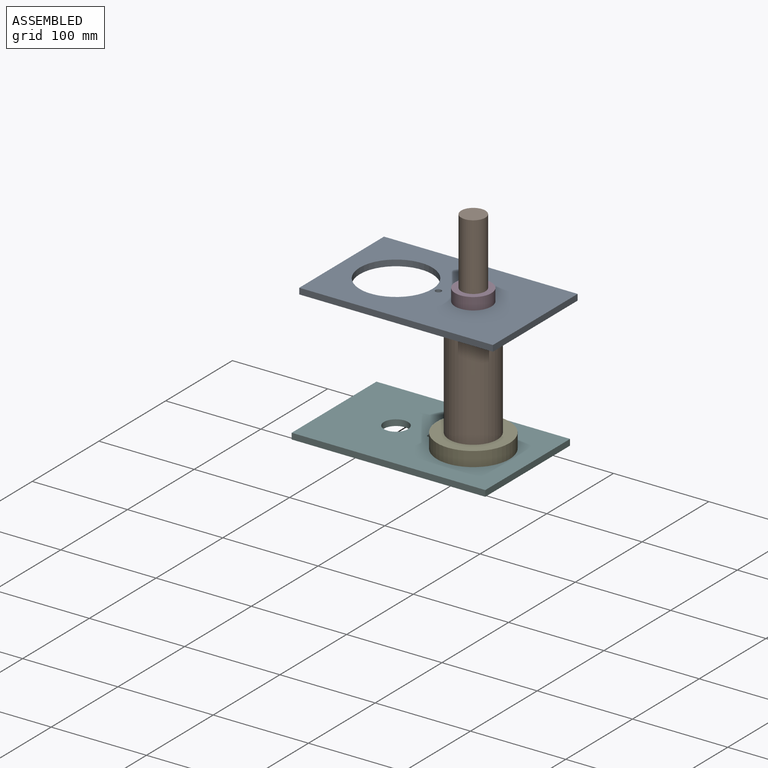
[diagram: assembled view]
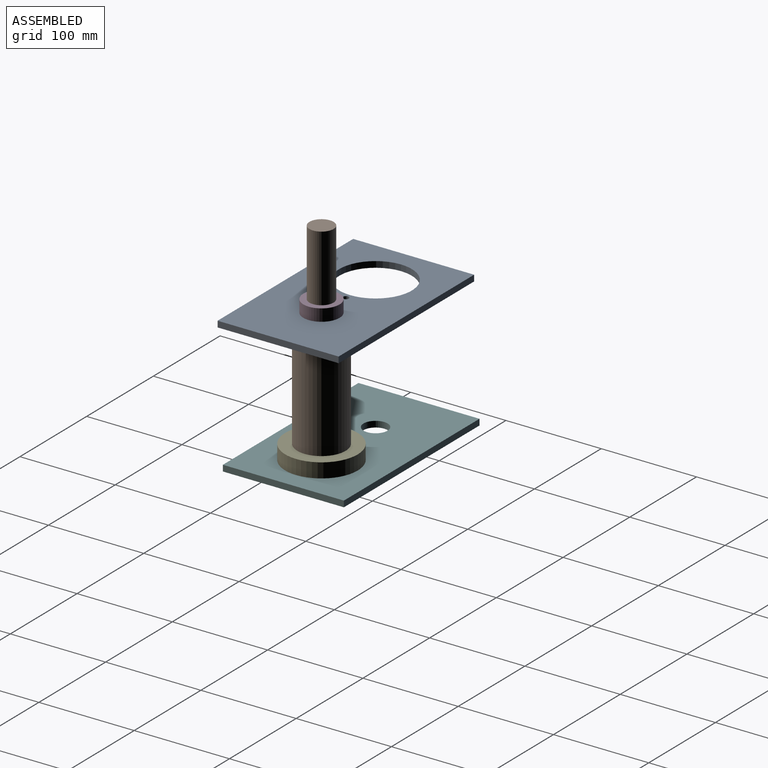
[diagram: assembled view, second angle]
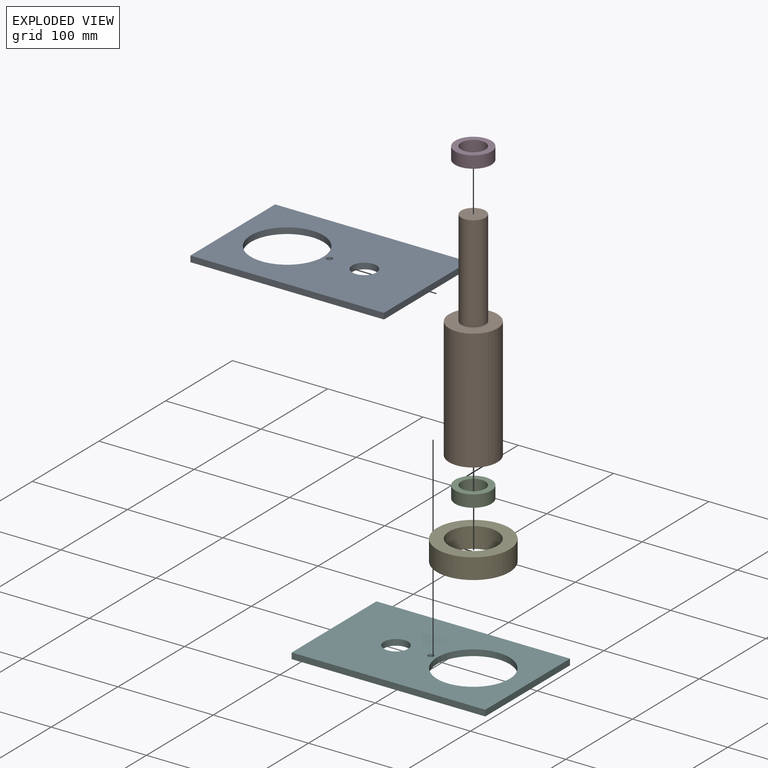
[diagram: exploded view]
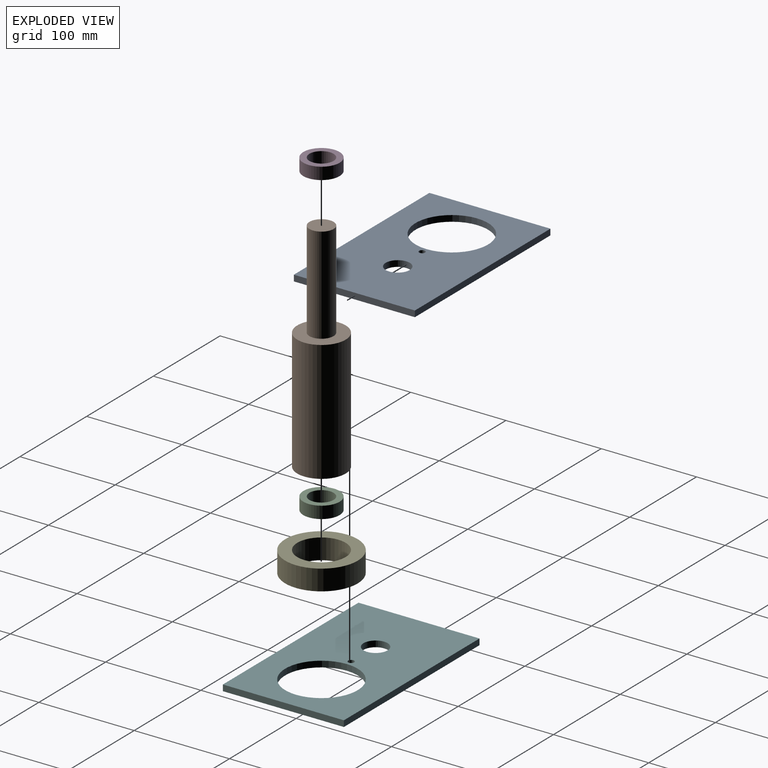
[diagram: exploded view, second angle]
ASSEMBLY  parts=6 mates=5
PART A: 9 faces, bbox 203.2x127x6.4 mm
  f0: plane 127x6.35mm, normal (1,0,0), area 806.5mm2, adj f1,f5,f7,f8
  f1: plane 203.2x6.35mm, normal (0,1,0), area 1290.3mm2, adj f0,f2,f7,f8
  f2: plane 127x6.35mm, normal (-1,0,0), area 806.5mm2, adj f1,f5,f7,f8
  f3: cylinder r=12.7mm len=25.4mm, axis (0,0,-1), area 506.7mm2, adj f7,f8
  f4: cylinder r=3.17mm len=6.35mm, axis (0,0,-1), area 126.7mm2, adj f7,f8
  f5: plane 203.2x6.35mm, normal (0,-1,0), area 1290.3mm2, adj f0,f2,f7,f8
  f6: cylinder r=38.1mm len=76.2mm, axis (0,0,-1), area 1520.1mm2, adj f7,f8
  f7: plane 203.2x127mm, normal (0,0,1), area 20707.7mm2, adj f0,f1,f2,f3,f4,f5,f6
  f8: plane 203.2x127mm, normal (0,0,-1), area 20707.7mm2, adj f0,f1,f2,f3,f4,f5,f6
PART B: 8 faces, bbox 50.8x50.8x228.6 mm
  f0: cone r=15.88mm half-angle=8.2deg, axis (0,0,-1), area 2337.3mm2, adj f1,f7
  f1: plane 50.8x50.8mm, normal (0,0,-1), area 1235.1mm2, adj f0,f2
  f2: cylinder r=25.4mm len=127mm, axis (0,0,1), area 20268.3mm2, adj f1,f3
  f3: plane 50.8x50.8mm, normal (0,0,1), area 1520.1mm2, adj f2,f4
  f4: cylinder r=12.7mm len=101.6mm, axis (0,0,1), area 8107.3mm2, adj f3,f5
  f5: plane 25.4x25.4mm, normal (0,0,1), area 506.7mm2, adj f4
  f6: plane 24.1x24.1mm, normal (0,0,-1), area 456.3mm2, adj f7
  f7: cylinder r=12.05mm len=75.24mm, axis (0,0,1), area 5697.3mm2, adj f0,f6
PART C: 4 faces, bbox 38.1x38.1x12.7 mm
  f0: cylinder r=12.7mm len=25.4mm, axis (0,0,-1), area 1013.4mm2, adj f2,f3
  f1: cylinder r=19.05mm len=38.1mm, axis (0,0,-1), area 1520.1mm2, adj f2,f3
  f2: plane 38.1x38.1mm, normal (0,0,1), area 633.4mm2, adj f0,f1
  f3: plane 38.1x38.1mm, normal (0,0,-1), area 633.4mm2, adj f0,f1
PART D: same geometry as C
PART E: 4 faces, bbox 76.2x76.2x21.6 mm
  f0: cylinder r=25.4mm len=50.8mm, axis (0,0,-1), area 3445.6mm2, adj f2,f3
  f1: cylinder r=38.1mm len=76.2mm, axis (0,0,-1), area 5168.4mm2, adj f2,f3
  f2: plane 76.2x76.2mm, normal (0,0,1), area 2533.5mm2, adj f0,f1
  f3: plane 76.2x76.2mm, normal (0,0,-1), area 2533.5mm2, adj f0,f1
PART F: same geometry as A
PLACE A t=(5.96,86.35,99.05)mm fixed
PLACE B rot(axis=(0,0,-1),102.2deg) t=(42.52,86.35,-40.65)mm
PLACE C t=(42.52,86.35,86.35)mm
PLACE D t=(42.52,86.35,105.4)mm
PLACE E t=(42.52,86.35,-40.65)mm
PLACE F rot(axis=(0,0,1),180deg) t=(-2.01,86.35,-40.65)mm fixed
MATE revolute F.f6 <-> E.f1  axis (0,0,-1) through (42.52,86.35,-40.65)mm
MATE revolute B.f0 <-> E.f0  axis (0,0,-1) through (42.52,86.35,-40.65)mm
MATE revolute B.f0 <-> C.f0  axis (0,0,1) through (42.52,86.35,86.35)mm
MATE revolute A.f3 <-> C.f0  axis (0,0,-1) through (42.52,86.35,99.05)mm
MATE revolute A.f3 <-> D.f0  axis (0,0,1) through (42.52,86.35,105.4)mm
